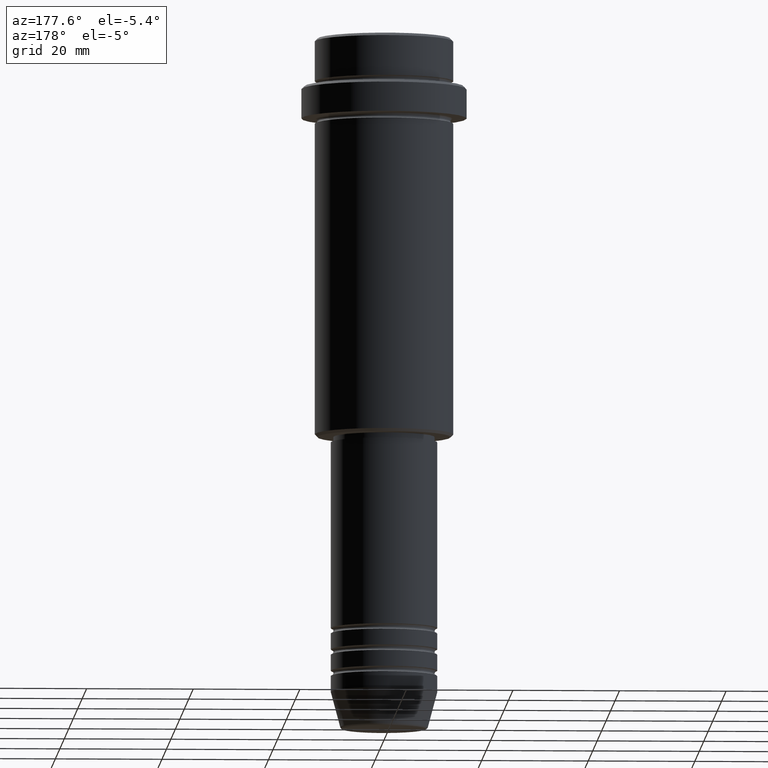
[diagram: clean part render]
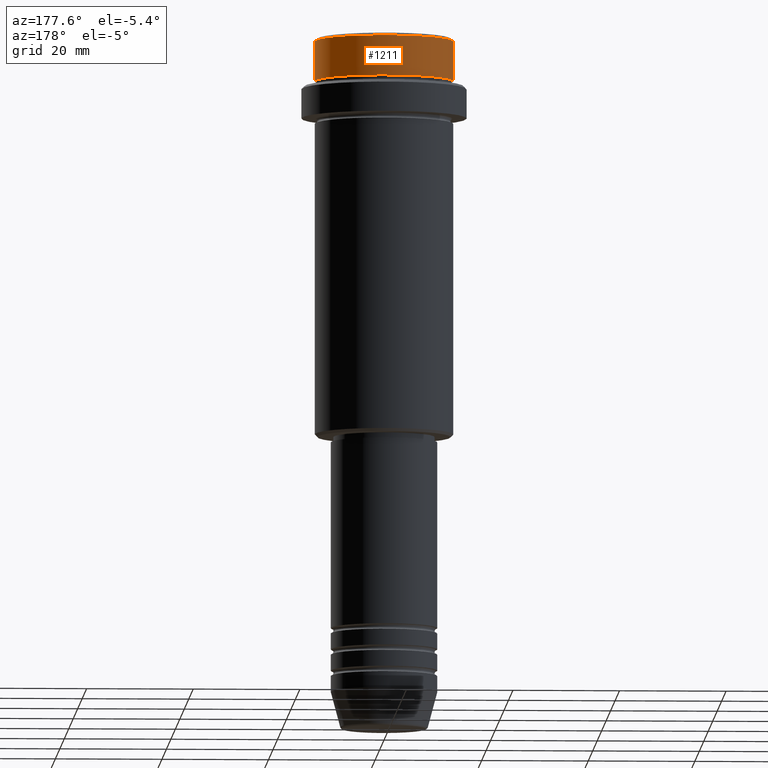
[diagram: same view with one face highlighted and labeled with its STEP entity id]
A machine part, auxiliary view. The second image highlights one B-rep face of the part: STEP entity #1211.
In plain terms, the highlighted cylindrical surface (partial cylindrical patch) has radius 13 mm, axis along (-0, -0, 1).
Its self-contained STEP definition (entity closure, byte-faithful):
#7 = EDGE_LOOP ( 'NONE', ( #69, #1089, #132, #979 ) ) ;
#12 = DIRECTION ( 'NONE',  ( -0.000000000000000000, -0.000000000000000000, 1.000000000000000000 ) ) ;
#61 = VECTOR ( 'NONE', #723, 1000.000000000000000 ) ;
#69 = ORIENTED_EDGE ( 'NONE', *, *, #589, .T. ) ;
#132 = ORIENTED_EDGE ( 'NONE', *, *, #375, .T. ) ;
#178 = LINE ( 'NONE', #618, #846 ) ;
#207 = CARTESIAN_POINT ( 'NONE',  ( 0.000000000000000000, 0.000000000000000000, -7.999999999999998224 ) ) ;
#256 = DIRECTION ( 'NONE',  ( 1.000000000000000000, 0.000000000000000000, 0.000000000000000000 ) ) ;
#258 = FACE_OUTER_BOUND ( 'NONE', #7, .T. ) ;
#274 = VERTEX_POINT ( 'NONE', #595 ) ;
#308 = CARTESIAN_POINT ( 'NONE',  ( -12.99999999999999822, 1.592040838891558898E-15, -7.999999999999998224 ) ) ;
#314 = CARTESIAN_POINT ( 'NONE',  ( 12.99999999999999822, 0.000000000000000000, -0.4999999999999900080 ) ) ;
#375 = EDGE_CURVE ( 'NONE', #274, #1070, #1272, .T. ) ;
#376 = CARTESIAN_POINT ( 'NONE',  ( 0.000000000000000000, 0.000000000000000000, -0.4999999999999900080 ) ) ;
#428 = CIRCLE ( 'NONE', #1411, 12.99999999999999822 ) ;
#470 = VERTEX_POINT ( 'NONE', #620 ) ;
#474 = CYLINDRICAL_SURFACE ( 'NONE', #819, 12.99999999999999822 ) ;
#538 = DIRECTION ( 'NONE',  ( 1.000000000000000000, 0.000000000000000000, 0.000000000000000000 ) ) ;
#584 = CARTESIAN_POINT ( 'NONE',  ( 0.000000000000000000, 0.000000000000000000, 0.000000000000000000 ) ) ;
#589 = EDGE_CURVE ( 'NONE', #470, #651, #428, .T. ) ;
#595 = CARTESIAN_POINT ( 'NONE',  ( -12.99999999999999822, 1.592040838891558898E-15, -0.4999999999999900080 ) ) ;
#618 = CARTESIAN_POINT ( 'NONE',  ( 12.99999999999999822, 0.000000000000000000, 0.000000000000000000 ) ) ;
#620 = CARTESIAN_POINT ( 'NONE',  ( 12.99999999999999822, 0.000000000000000000, -7.999999999999998224 ) ) ;
#651 = VERTEX_POINT ( 'NONE', #308 ) ;
#710 = DIRECTION ( 'NONE',  ( -0.000000000000000000, -0.000000000000000000, 1.000000000000000000 ) ) ;
#723 = DIRECTION ( 'NONE',  ( -0.000000000000000000, -0.000000000000000000, 1.000000000000000000 ) ) ;
#803 = DIRECTION ( 'NONE',  ( 0.000000000000000000, 0.000000000000000000, -1.000000000000000000 ) ) ;
#819 = AXIS2_PLACEMENT_3D ( 'NONE', #584, #12, #1102 ) ;
#846 = VECTOR ( 'NONE', #710, 1000.000000000000000 ) ;
#979 = ORIENTED_EDGE ( 'NONE', *, *, #1384, .F. ) ;
#1013 = EDGE_CURVE ( 'NONE', #651, #274, #1032, .T. ) ;
#1032 = LINE ( 'NONE', #1054, #61 ) ;
#1054 = CARTESIAN_POINT ( 'NONE',  ( -12.99999999999999822, 1.592040838891558898E-15, 0.000000000000000000 ) ) ;
#1070 = VERTEX_POINT ( 'NONE', #314 ) ;
#1089 = ORIENTED_EDGE ( 'NONE', *, *, #1013, .T. ) ;
#1102 = DIRECTION ( 'NONE',  ( 1.000000000000000000, 0.000000000000000000, 0.000000000000000000 ) ) ;
#1211 = ADVANCED_FACE ( 'NONE', ( #258 ), #474, .T. ) ;
#1272 = CIRCLE ( 'NONE', #1393, 12.99999999999999822 ) ;
#1384 = EDGE_CURVE ( 'NONE', #470, #1070, #178, .T. ) ;
#1393 = AXIS2_PLACEMENT_3D ( 'NONE', #376, #803, #256 ) ;
#1402 = DIRECTION ( 'NONE',  ( -0.000000000000000000, -0.000000000000000000, 1.000000000000000000 ) ) ;
#1411 = AXIS2_PLACEMENT_3D ( 'NONE', #207, #1402, #538 ) ;